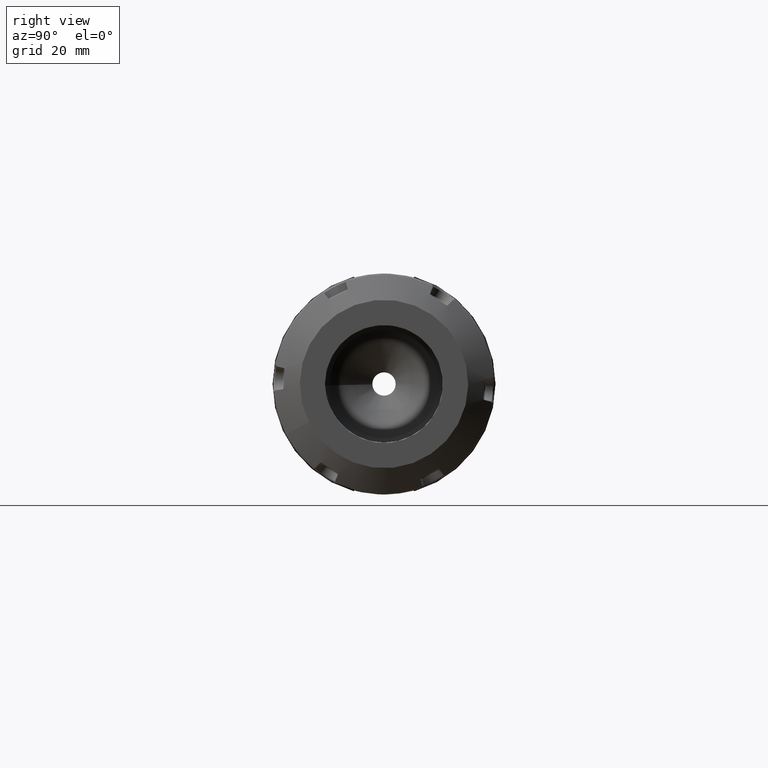
[diagram: clean part render]
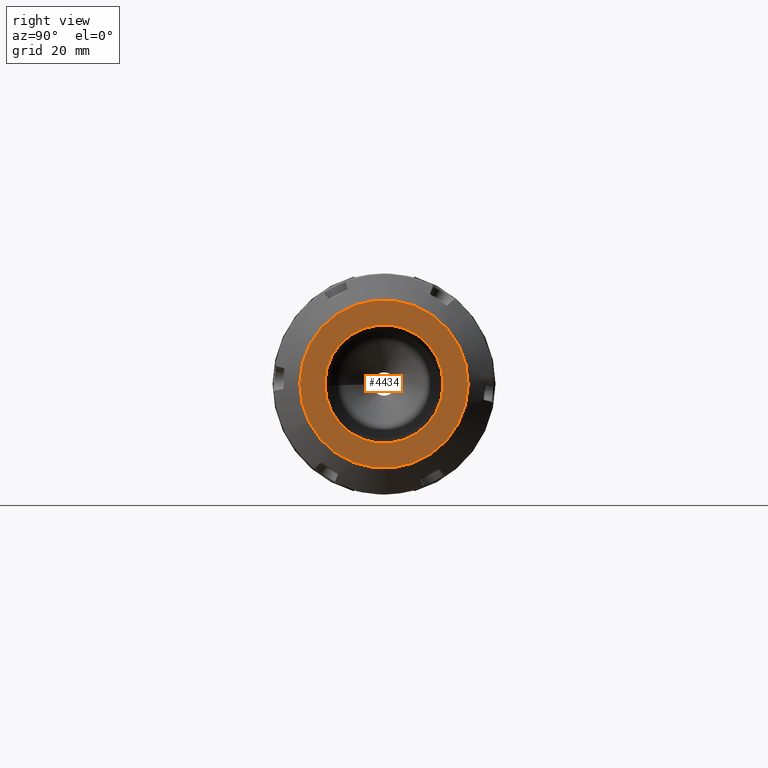
[diagram: same view with one face highlighted and labeled with its STEP entity id]
A machine part, right view. The second image highlights one B-rep face of the part: STEP entity #4434.
In plain terms, the highlighted planar face has unit normal (1, 0, -0).
Its self-contained STEP definition (entity closure, byte-faithful):
#276=FACE_BOUND('',#933,.T.);
#388=PLANE('',#5057);
#627=FACE_OUTER_BOUND('',#932,.T.);
#932=EDGE_LOOP('',(#3988));
#933=EDGE_LOOP('',(#3989));
#1178=CIRCLE('',#5008,24.);
#1191=CIRCLE('',#5058,16.85);
#2173=VERTEX_POINT('',#8423);
#2196=VERTEX_POINT('',#9155);
#2737=EDGE_CURVE('',#2173,#2173,#1178,.T.);
#2803=EDGE_CURVE('',#2196,#2196,#1191,.T.);
#3988=ORIENTED_EDGE('',*,*,#2737,.T.);
#3989=ORIENTED_EDGE('',*,*,#2803,.T.);
#4434=ADVANCED_FACE('',(#627,#276),#388,.T.);
#5008=AXIS2_PLACEMENT_3D('',#8425,#6116,#6117);
#5057=AXIS2_PLACEMENT_3D('',#9154,#6252,#6253);
#5058=AXIS2_PLACEMENT_3D('',#9156,#6254,#6255);
#6116=DIRECTION('center_axis',(1.,0.,0.));
#6117=DIRECTION('ref_axis',(0.,0.,1.));
#6252=DIRECTION('center_axis',(1.,0.,0.));
#6253=DIRECTION('ref_axis',(0.,0.,-1.));
#6254=DIRECTION('center_axis',(-1.,0.,0.));
#6255=DIRECTION('ref_axis',(0.,-1.,0.));
#8423=CARTESIAN_POINT('',(12.75,0.,24.));
#8425=CARTESIAN_POINT('Origin',(12.75,1.234443973541E-14,0.));
#9154=CARTESIAN_POINT('Origin',(12.75,0.,0.));
#9155=CARTESIAN_POINT('',(12.75,-2.06352985656329E-15,16.85));
#9156=CARTESIAN_POINT('Origin',(12.75,0.,0.));